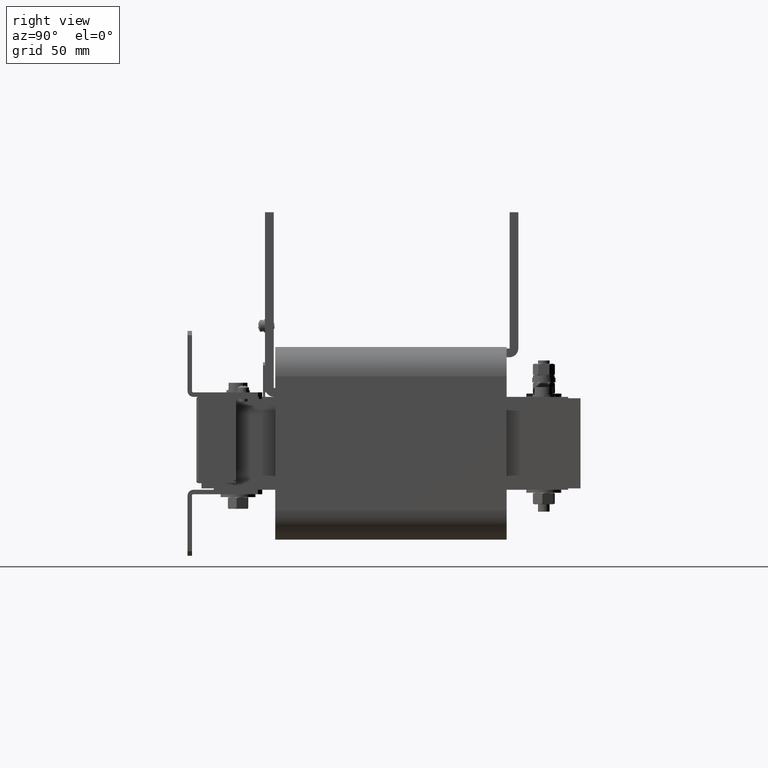
[diagram: clean part render]
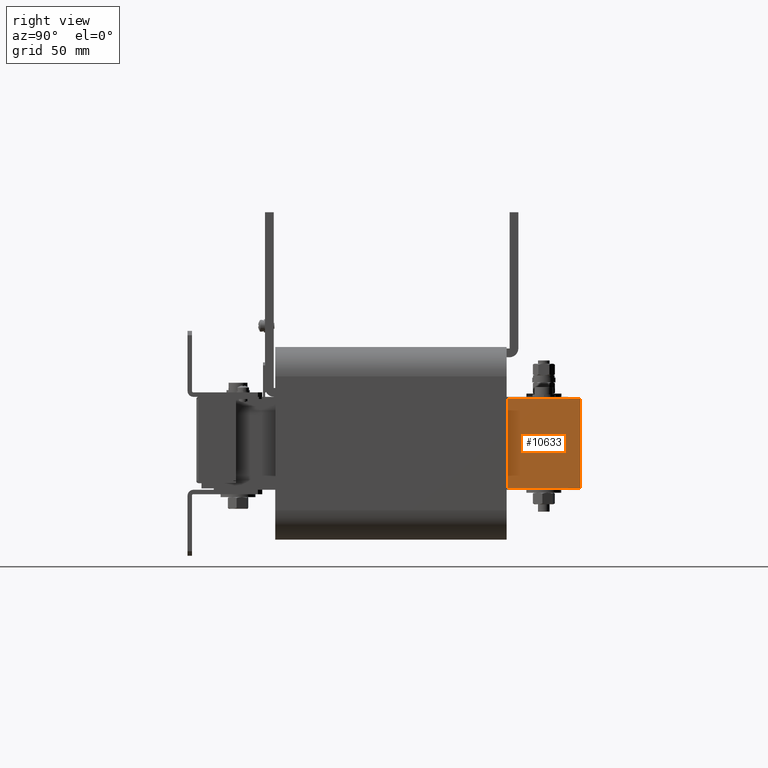
[diagram: same view with one face highlighted and labeled with its STEP entity id]
A machine part, right view. The second image highlights one B-rep face of the part: STEP entity #10633.
In plain terms, the highlighted planar face has unit normal (-1, 0, 0).
Its self-contained STEP definition (entity closure, byte-faithful):
#1408 = EDGE_CURVE ( 'NONE', #19872, #17721, #16467, .T. ) ;
#1495 = VECTOR ( 'NONE', #17582, 1000.000000000000000 ) ;
#2713 = EDGE_CURVE ( 'NONE', #22570, #19872, #23380, .T. ) ;
#3065 = CARTESIAN_POINT ( 'NONE',  ( 124.9999999999999600, 24.99999999999999300, -30.75000000000000000 ) ) ;
#3803 = LINE ( 'NONE', #15431, #1495 ) ;
#4730 = ORIENTED_EDGE ( 'NONE', *, *, #1408, .T. ) ;
#5078 = ORIENTED_EDGE ( 'NONE', *, *, #2713, .T. ) ;
#5699 = CARTESIAN_POINT ( 'NONE',  ( 124.9999999999999600, 24.99999999999999300, 30.75000000000000000 ) ) ;
#6060 = EDGE_LOOP ( 'NONE', ( #4730, #12205, #20984, #5078 ) ) ;
#6115 = CARTESIAN_POINT ( 'NONE',  ( 124.9999999999999600, -24.99999999999999300, -30.75000000000000000 ) ) ;
#6964 = LINE ( 'NONE', #18356, #23622 ) ;
#7322 = FACE_OUTER_BOUND ( 'NONE', #6060, .T. ) ;
#9256 = CARTESIAN_POINT ( 'NONE',  ( 124.9999999999999600, -24.99999999999999300, 30.75000000000000000 ) ) ;
#9430 = VECTOR ( 'NONE', #18762, 1000.000000000000000 ) ;
#9999 = CARTESIAN_POINT ( 'NONE',  ( 124.9999999999999600, -24.99999999999999300, -30.75000000000000000 ) ) ;
#10633 = ADVANCED_FACE ( 'NONE', ( #7322 ), #18085, .F. ) ;
#11764 = DIRECTION ( 'NONE',  ( -1.000000000000000000, 0.0000000000000000000, 0.0000000000000000000 ) ) ;
#12205 = ORIENTED_EDGE ( 'NONE', *, *, #12722, .F. ) ;
#12722 = EDGE_CURVE ( 'NONE', #19453, #17721, #6964, .T. ) ;
#13485 = DIRECTION ( 'NONE',  ( -0.0000000000000000000, -0.0000000000000000000, -1.000000000000000000 ) ) ;
#13804 = CARTESIAN_POINT ( 'NONE',  ( 124.9999999999999600, -24.99999999999999300, 30.75000000000000000 ) ) ;
#15431 = CARTESIAN_POINT ( 'NONE',  ( 124.9999999999999600, -24.99999999999999300, 30.75000000000000000 ) ) ;
#16229 = EDGE_CURVE ( 'NONE', #22570, #19453, #3803, .T. ) ;
#16467 = LINE ( 'NONE', #6115, #9430 ) ;
#17582 = DIRECTION ( 'NONE',  ( 0.0000000000000000000, 1.000000000000000000, 0.0000000000000000000 ) ) ;
#17721 = VERTEX_POINT ( 'NONE', #3065 ) ;
#18085 = PLANE ( 'NONE',  #18311 ) ;
#18311 = AXIS2_PLACEMENT_3D ( 'NONE', #13804, #11764, #26540 ) ;
#18356 = CARTESIAN_POINT ( 'NONE',  ( 124.9999999999999600, 24.99999999999999300, 30.75000000000000000 ) ) ;
#18762 = DIRECTION ( 'NONE',  ( 0.0000000000000000000, 1.000000000000000000, 0.0000000000000000000 ) ) ;
#19453 = VERTEX_POINT ( 'NONE', #5699 ) ;
#19872 = VERTEX_POINT ( 'NONE', #9999 ) ;
#20984 = ORIENTED_EDGE ( 'NONE', *, *, #16229, .F. ) ;
#22570 = VERTEX_POINT ( 'NONE', #22835 ) ;
#22835 = CARTESIAN_POINT ( 'NONE',  ( 124.9999999999999600, -24.99999999999999300, 30.75000000000000000 ) ) ;
#23045 = VECTOR ( 'NONE', #13485, 1000.000000000000000 ) ;
#23380 = LINE ( 'NONE', #9256, #23045 ) ;
#23622 = VECTOR ( 'NONE', #24562, 1000.000000000000000 ) ;
#24562 = DIRECTION ( 'NONE',  ( -0.0000000000000000000, -0.0000000000000000000, -1.000000000000000000 ) ) ;
#26540 = DIRECTION ( 'NONE',  ( 0.0000000000000000000, 0.0000000000000000000, 1.000000000000000000 ) ) ;